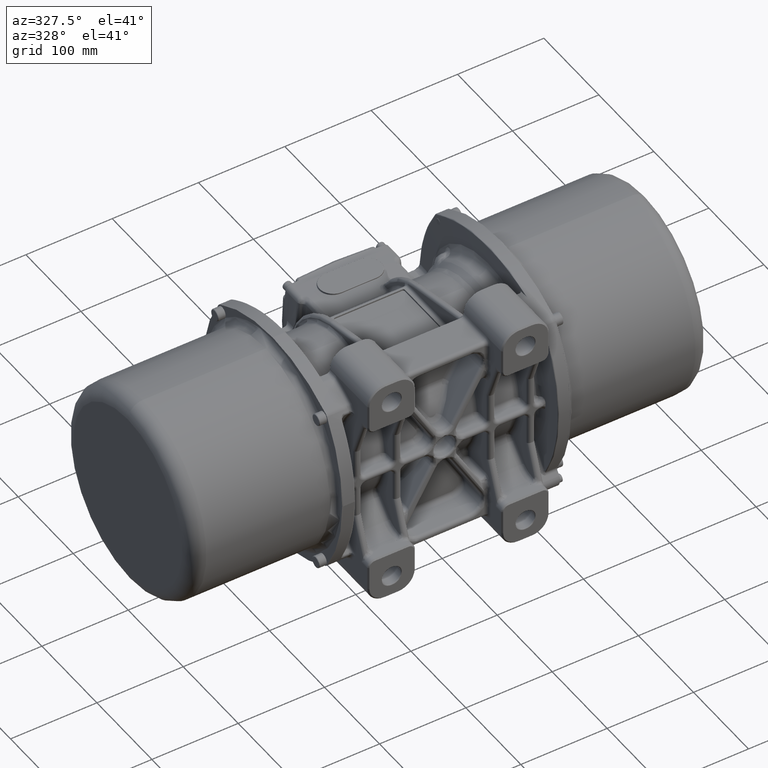
[diagram: clean part render]
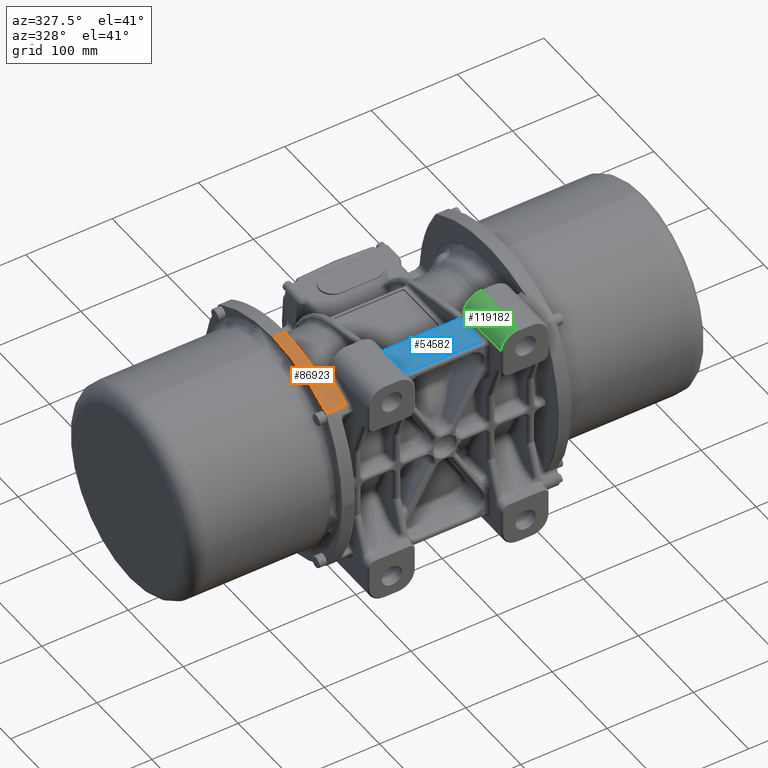
[diagram: same view with three faces highlighted in distinct colors, each labeled with its STEP entity id]
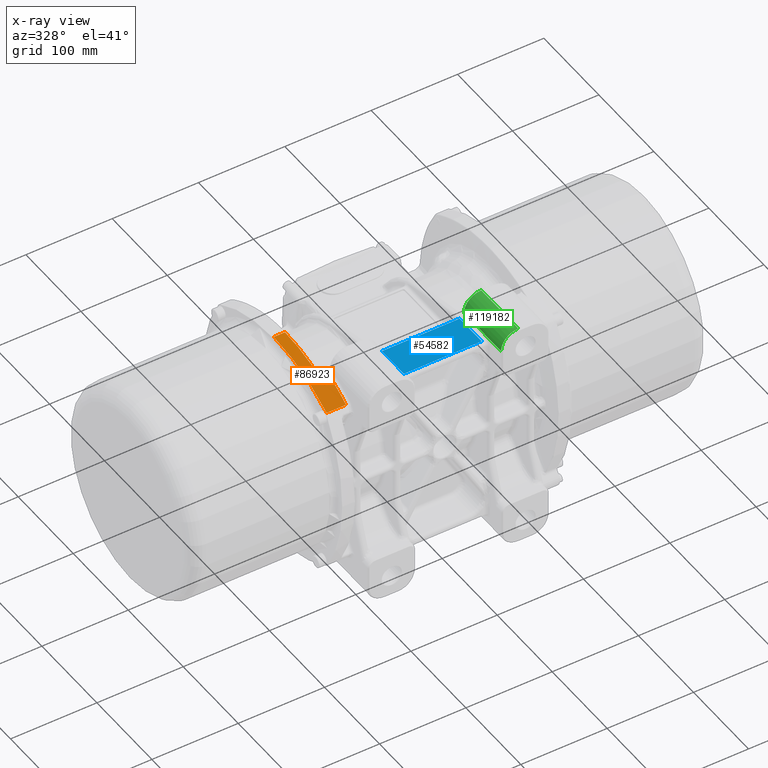
[diagram: x-ray of the same camera — body ghosted, the three highlighted faces saturated]
A machine part, auxiliary view with three faces highlighted in distinct colors.
The next image is the same camera in x-ray (body ghosted, the three faces saturated) — at least one of them is partly hidden behind the body in this view.
Their STEP definitions:

[orange] entity #86923 — the highlighted cylindrical surface (partial cylindrical patch) has radius 180.3 mm, axis along (-1, 0, 0).
#5776 = VERTEX_POINT ( 'NONE', #50323 ) ;
#6082 = CARTESIAN_POINT ( 'NONE',  ( -118.6816816531211200, -65.74333452991747600, 114.2074025944748600 ) ) ;
#7521 = CARTESIAN_POINT ( 'NONE',  ( -120.2500000000000000, -71.59013589302129800, 111.6779213150490100 ) ) ;
#14440 = LINE ( 'NONE', #7521, #17619 ) ;
#15464 = VECTOR ( 'NONE', #63552, 1000.000000000000000 ) ;
#17461 = CARTESIAN_POINT ( 'NONE',  ( -118.5021709262371100, -29.84946107399520100, 124.1177805386026900 ) ) ;
#17619 = VECTOR ( 'NONE', #67045, 1000.000000000000000 ) ;
#21217 = ORIENTED_EDGE ( 'NONE', *, *, #71637, .T. ) ;
#24781 = VERTEX_POINT ( 'NONE', #88666 ) ;
#26772 = ORIENTED_EDGE ( 'NONE', *, *, #83064, .T. ) ;
#27070 = CARTESIAN_POINT ( 'NONE',  ( -118.5750977379876900, -47.88210791217348800, 120.1381787410200800 ) ) ;
#29266 = DIRECTION ( 'NONE',  ( -1.000000000000000000, 0.0000000000000000000, 0.0000000000000000000 ) ) ;
#35801 = VECTOR ( 'NONE', #84630, 1000.000000000000000 ) ;
#36683 = CARTESIAN_POINT ( 'NONE',  ( -118.4853413452941900, -23.83284855131226700, 125.0191564698433500 ) ) ;
#37206 = CARTESIAN_POINT ( 'NONE',  ( -109.0000000000000000, -6.938893903907230000E-015, -53.79999999942380400 ) ) ;
#40728 = ORIENTED_EDGE ( 'NONE', *, *, #59203, .T. ) ;
#42042 = LINE ( 'NONE', #63121, #15464 ) ;
#42493 = ORIENTED_EDGE ( 'NONE', *, *, #56132, .F. ) ;
#43237 = B_SPLINE_CURVE_WITH_KNOTS ( 'NONE', 3,
 ( #86651, #6082, #87086, #27070, #97191, #17461, #36683, #56391, #66450, #67763 ),
 .UNSPECIFIED., .F., .F.,
 ( 4, 2, 2, 2, 4 ),
 ( 0.0000000000000000000, 0.1050940751175496200, 0.2101881502350992400, 0.3152822253526489400, 0.4203763004701986400 ),
 .UNSPECIFIED. ) ;
#48956 = CARTESIAN_POINT ( 'NONE',  ( -109.0000000000000000, -6.938893903907230000E-015, -53.79999999942380400 ) ) ;
#50323 = CARTESIAN_POINT ( 'NONE',  ( -109.0000000000000000, -96.19601830893420000, 98.69398696800111300 ) ) ;
#55218 = CARTESIAN_POINT ( 'NONE',  ( -120.2500000000000000, -96.19601830899999600, 98.69398696799999000 ) ) ;
#56132 = EDGE_CURVE ( 'NONE', #108036, #24781, #75802, .T. ) ;
#56391 = CARTESIAN_POINT ( 'NONE',  ( -118.4629012178692400, -11.85775497504376800, 126.2102470350209800 ) ) ;
#56426 = CARTESIAN_POINT ( 'NONE',  ( -109.0000000000000000, -71.59013589283769400, 111.6779213150916000 ) ) ;
#59203 = EDGE_CURVE ( 'NONE', #114771, #82876, #43237, .T. ) ;
#63121 = CARTESIAN_POINT ( 'NONE',  ( -109.0000000000000000, -6.938893903907230000E-015, 126.4999999998172100 ) ) ;
#63552 = DIRECTION ( 'NONE',  ( -1.000000000000000000, 0.0000000000000000000, 0.0000000000000000000 ) ) ;
#66450 = CARTESIAN_POINT ( 'NONE',  ( -118.4572906713872300, -5.899286397699881900, 126.4999999979351800 ) ) ;
#67045 = DIRECTION ( 'NONE',  ( -1.000000000000000000, 0.0000000000000000000, 0.0000000000000000000 ) ) ;
#67763 = CARTESIAN_POINT ( 'NONE',  ( -118.4572896421361500, -6.087628860209447900E-008, 126.5001420233804500 ) ) ;
#71637 = EDGE_CURVE ( 'NONE', #82876, #24781, #42042, .T. ) ;
#74075 = CARTESIAN_POINT ( 'NONE',  ( -131.5000000000000000, -96.19601830898140800, 98.69398696801170000 ) ) ;
#75802 = CIRCLE ( 'NONE', #110967, 180.2999999992410100 ) ;
#76041 = CYLINDRICAL_SURFACE ( 'NONE', #85851, 180.2999999992410100 ) ;
#76951 = CARTESIAN_POINT ( 'NONE',  ( -118.7265588731082000, -71.59013799792150200, 111.6779261792490000 ) ) ;
#77054 = DIRECTION ( 'NONE',  ( 0.0000000000000000000, 0.0000000000000000000, 1.000000000000000000 ) ) ;
#81845 = ORIENTED_EDGE ( 'NONE', *, *, #99945, .T. ) ;
#82876 = VERTEX_POINT ( 'NONE', #123230 ) ;
#83064 = EDGE_CURVE ( 'NONE', #108036, #5776, #84462, .T. ) ;
#84436 = AXIS2_PLACEMENT_3D ( 'NONE', #37206, #127065, #77054 ) ;
#84462 = LINE ( 'NONE', #55218, #35801 ) ;
#84630 = DIRECTION ( 'NONE',  ( 1.000000000000000000, 0.0000000000000000000, 0.0000000000000000000 ) ) ;
#85851 = AXIS2_PLACEMENT_3D ( 'NONE', #48956, #29266, #89300 ) ;
#86651 = CARTESIAN_POINT ( 'NONE',  ( -118.7265588731082000, -71.59013799792150200, 111.6779261792490000 ) ) ;
#86923 = ADVANCED_FACE ( 'NONE', ( #91625 ), #76041, .T. ) ;
#87086 = CARTESIAN_POINT ( 'NONE',  ( -118.6424140032564100, -59.81673769747066400, 116.4032437208050700 ) ) ;
#88666 = CARTESIAN_POINT ( 'NONE',  ( -131.5000000000000000, -6.938893903907230000E-015, 126.4999999998172100 ) ) ;
#89300 = DIRECTION ( 'NONE',  ( 0.0000000000000000000, 0.0000000000000000000, 1.000000000000000000 ) ) ;
#91625 = FACE_OUTER_BOUND ( 'NONE', #122106, .T. ) ;
#97191 = CARTESIAN_POINT ( 'NONE',  ( -118.5470491225838900, -41.87410002402230400, 121.6773110842701200 ) ) ;
#97833 = CARTESIAN_POINT ( 'NONE',  ( -131.5000000000000000, -6.938893903907230000E-015, -53.79999999942380400 ) ) ;
#98261 = DIRECTION ( 'NONE',  ( -1.000000000000000000, 0.0000000000000000000, 0.0000000000000000000 ) ) ;
#99945 = EDGE_CURVE ( 'NONE', #110694, #114771, #14440, .T. ) ;
#107086 = DIRECTION ( 'NONE',  ( 0.0000000000000000000, 0.0000000000000000000, 1.000000000000000000 ) ) ;
#108036 = VERTEX_POINT ( 'NONE', #74075 ) ;
#110561 = CIRCLE ( 'NONE', #84436, 180.2999999992410100 ) ;
#110694 = VERTEX_POINT ( 'NONE', #56426 ) ;
#110967 = AXIS2_PLACEMENT_3D ( 'NONE', #97833, #98261, #107086 ) ;
#114771 = VERTEX_POINT ( 'NONE', #76951 ) ;
#116486 = ORIENTED_EDGE ( 'NONE', *, *, #125109, .T. ) ;
#122106 = EDGE_LOOP ( 'NONE', ( #40728, #21217, #42493, #26772, #116486, #81845 ) ) ;
#123230 = CARTESIAN_POINT ( 'NONE',  ( -118.4572896421361500, -6.087628860209447900E-008, 126.5001420233804500 ) ) ;
#125109 = EDGE_CURVE ( 'NONE', #5776, #110694, #110561, .T. ) ;
#127065 = DIRECTION ( 'NONE',  ( -1.000000000000000000, 0.0000000000000000000, 0.0000000000000000000 ) ) ;

[blue] entity #54582 — the highlighted planar face has unit normal (0, 0, -1).
#2027 = ORIENTED_EDGE ( 'NONE', *, *, #2185, .T. ) ;
#2185 = EDGE_CURVE ( 'NONE', #16330, #89290, #114535, .T. ) ;
#4460 = LINE ( 'NONE', #103902, #108006 ) ;
#11973 = DIRECTION ( 'NONE',  ( -0.0000000000000000000, -1.000000000000000000, -0.0000000000000000000 ) ) ;
#16330 = VERTEX_POINT ( 'NONE', #40463 ) ;
#24287 = CARTESIAN_POINT ( 'NONE',  ( -45.00000000000000000, -81.00000000000000000, 112.5000000000000000 ) ) ;
#25156 = CARTESIAN_POINT ( 'NONE',  ( 45.00000000000000000, -81.00000000000000000, 112.5000000000000000 ) ) ;
#32599 = ORIENTED_EDGE ( 'NONE', *, *, #52925, .F. ) ;
#32871 = DIRECTION ( 'NONE',  ( -1.000000000000000000, -0.0000000000000000000, -0.0000000000000000000 ) ) ;
#36506 = PLANE ( 'NONE',  #49471 ) ;
#39681 = ORIENTED_EDGE ( 'NONE', *, *, #64848, .T. ) ;
#40395 = VERTEX_POINT ( 'NONE', #75682 ) ;
#40463 = CARTESIAN_POINT ( 'NONE',  ( -45.00000000000000000, -101.0000000000000000, 112.5000000000000000 ) ) ;
#44896 = LINE ( 'NONE', #25156, #126517 ) ;
#46600 = CARTESIAN_POINT ( 'NONE',  ( -45.00000000000000000, -101.0000000000000000, 112.5000000000000000 ) ) ;
#47302 = EDGE_CURVE ( 'NONE', #103382, #16330, #122833, .T. ) ;
#49471 = AXIS2_PLACEMENT_3D ( 'NONE', #46600, #57534, #57079 ) ;
#52925 = EDGE_CURVE ( 'NONE', #40395, #89290, #44896, .T. ) ;
#53105 = CARTESIAN_POINT ( 'NONE',  ( 45.00000000000000000, -101.0000000000000000, 112.5000000000000000 ) ) ;
#54582 = ADVANCED_FACE ( 'NONE', ( #115214 ), #36506, .F. ) ;
#57079 = DIRECTION ( 'NONE',  ( 0.0000000000000000000, 1.000000000000000000, 0.0000000000000000000 ) ) ;
#57534 = DIRECTION ( 'NONE',  ( 0.0000000000000000000, 0.0000000000000000000, -1.000000000000000000 ) ) ;
#64361 = EDGE_LOOP ( 'NONE', ( #73273, #2027, #32599, #39681 ) ) ;
#64848 = EDGE_CURVE ( 'NONE', #40395, #103382, #4460, .T. ) ;
#73273 = ORIENTED_EDGE ( 'NONE', *, *, #47302, .T. ) ;
#75682 = CARTESIAN_POINT ( 'NONE',  ( 45.00000000000000000, -61.00000000000000000, 112.5000000000000000 ) ) ;
#83685 = CARTESIAN_POINT ( 'NONE',  ( 0.0000000000000000000, -101.0000000000000000, 112.5000000000000000 ) ) ;
#89290 = VERTEX_POINT ( 'NONE', #53105 ) ;
#94375 = DIRECTION ( 'NONE',  ( -0.0000000000000000000, -1.000000000000000000, -0.0000000000000000000 ) ) ;
#103382 = VERTEX_POINT ( 'NONE', #112777 ) ;
#103902 = CARTESIAN_POINT ( 'NONE',  ( 0.0000000000000000000, -61.00000000000000000, 112.5000000000000000 ) ) ;
#108006 = VECTOR ( 'NONE', #32871, 1000.000000000000000 ) ;
#112777 = CARTESIAN_POINT ( 'NONE',  ( -45.00000000000000000, -61.00000000000000000, 112.5000000000000000 ) ) ;
#114535 = LINE ( 'NONE', #83685, #127088 ) ;
#115214 = FACE_OUTER_BOUND ( 'NONE', #64361, .T. ) ;
#122723 = DIRECTION ( 'NONE',  ( 1.000000000000000000, -0.0000000000000000000, -0.0000000000000000000 ) ) ;
#122833 = LINE ( 'NONE', #24287, #129160 ) ;
#126517 = VECTOR ( 'NONE', #11973, 1000.000000000000000 ) ;
#127088 = VECTOR ( 'NONE', #122723, 1000.000000000000000 ) ;
#129160 = VECTOR ( 'NONE', #94375, 1000.000000000000000 ) ;

[green] entity #119182 — the highlighted cylindrical surface (edge-blend (fillet) strip) has radius 20 mm, axis along (0, -1, 0).
#3825 = EDGE_CURVE ( 'NONE', #118021, #82277, #122004, .T. ) ;
#9703 = VECTOR ( 'NONE', #107729, 1000.000000000000000 ) ;
#12804 = CYLINDRICAL_SURFACE ( 'NONE', #96559, 20.00000000000000400 ) ;
#13323 = CIRCLE ( 'NONE', #127141, 20.00000000000000400 ) ;
#13420 = LINE ( 'NONE', #52376, #36921 ) ;
#16403 = CARTESIAN_POINT ( 'NONE',  ( 70.00000000000000000, -128.5000000000000000, 137.5000000000000000 ) ) ;
#21306 = ORIENTED_EDGE ( 'NONE', *, *, #49584, .T. ) ;
#23606 = CIRCLE ( 'NONE', #25548, 20.00000000000000400 ) ;
#25548 = AXIS2_PLACEMENT_3D ( 'NONE', #81728, #62030, #32243 ) ;
#26110 = CARTESIAN_POINT ( 'NONE',  ( 70.00000000000000000, -61.00000000000000000, 137.5000000000000000 ) ) ;
#28675 = ORIENTED_EDGE ( 'NONE', *, *, #77421, .F. ) ;
#31258 = CARTESIAN_POINT ( 'NONE',  ( 50.00000000000000000, -94.75000000000000000, 117.5000000000000000 ) ) ;
#32243 = DIRECTION ( 'NONE',  ( 0.0000000000000000000, 0.0000000000000000000, -1.000000000000000000 ) ) ;
#36921 = VECTOR ( 'NONE', #122540, 1000.000000000000000 ) ;
#37955 = FACE_OUTER_BOUND ( 'NONE', #109859, .T. ) ;
#40813 = CARTESIAN_POINT ( 'NONE',  ( 50.00000000000000000, -101.0000000000000000, 117.5000000000000000 ) ) ;
#44144 = DIRECTION ( 'NONE',  ( 0.0000000000000000000, 0.0000000000000000000, -1.000000000000000000 ) ) ;
#49584 = EDGE_CURVE ( 'NONE', #82277, #125354, #127276, .T. ) ;
#52376 = CARTESIAN_POINT ( 'NONE',  ( 70.00000000000000000, -94.75000000000000000, 137.5000000000000000 ) ) ;
#62030 = DIRECTION ( 'NONE',  ( 0.0000000000000000000, -1.000000000000000000, 0.0000000000000000000 ) ) ;
#62527 = CARTESIAN_POINT ( 'NONE',  ( 70.00000000000000000, -128.5000000000000000, 117.5000000000000000 ) ) ;
#67494 = ORIENTED_EDGE ( 'NONE', *, *, #69335, .T. ) ;
#67590 = ORIENTED_EDGE ( 'NONE', *, *, #95740, .F. ) ;
#69335 = EDGE_CURVE ( 'NONE', #101975, #118021, #23606, .T. ) ;
#70243 = DIRECTION ( 'NONE',  ( 0.0000000000000000000, -1.000000000000000000, 0.0000000000000000000 ) ) ;
#73455 = VECTOR ( 'NONE', #70243, 1000.000000000000000 ) ;
#77421 = EDGE_CURVE ( 'NONE', #94933, #125354, #13323, .T. ) ;
#81728 = CARTESIAN_POINT ( 'NONE',  ( 70.00000000000000000, -61.00000000000000000, 117.5000000000000000 ) ) ;
#82277 = VERTEX_POINT ( 'NONE', #40813 ) ;
#83983 = DIRECTION ( 'NONE',  ( 0.0000000000000000000, -1.000000000000000000, 0.0000000000000000000 ) ) ;
#87918 = CARTESIAN_POINT ( 'NONE',  ( 50.00000000000000000, -94.75000000000000000, 117.5000000000000000 ) ) ;
#94933 = VERTEX_POINT ( 'NONE', #16403 ) ;
#95740 = EDGE_CURVE ( 'NONE', #101975, #94933, #13420, .T. ) ;
#96559 = AXIS2_PLACEMENT_3D ( 'NONE', #99187, #110161, #108476 ) ;
#99187 = CARTESIAN_POINT ( 'NONE',  ( 70.00000000000000000, -61.00000000000000000, 117.5000000000000000 ) ) ;
#101975 = VERTEX_POINT ( 'NONE', #26110 ) ;
#107729 = DIRECTION ( 'NONE',  ( 0.0000000000000000000, -1.000000000000000000, 0.0000000000000000000 ) ) ;
#108476 = DIRECTION ( 'NONE',  ( 0.0000000000000000000, 0.0000000000000000000, -1.000000000000000000 ) ) ;
#109859 = EDGE_LOOP ( 'NONE', ( #21306, #28675, #67590, #67494, #126181 ) ) ;
#110161 = DIRECTION ( 'NONE',  ( 0.0000000000000000000, -1.000000000000000000, 0.0000000000000000000 ) ) ;
#118021 = VERTEX_POINT ( 'NONE', #128986 ) ;
#119182 = ADVANCED_FACE ( 'NONE', ( #37955 ), #12804, .T. ) ;
#122004 = LINE ( 'NONE', #31258, #73455 ) ;
#122540 = DIRECTION ( 'NONE',  ( 0.0000000000000000000, -1.000000000000000000, 0.0000000000000000000 ) ) ;
#125354 = VERTEX_POINT ( 'NONE', #129666 ) ;
#126181 = ORIENTED_EDGE ( 'NONE', *, *, #3825, .T. ) ;
#127141 = AXIS2_PLACEMENT_3D ( 'NONE', #62527, #83983, #44144 ) ;
#127276 = LINE ( 'NONE', #87918, #9703 ) ;
#128986 = CARTESIAN_POINT ( 'NONE',  ( 50.00000000000000000, -61.00000000000000000, 117.5000000000000000 ) ) ;
#129666 = CARTESIAN_POINT ( 'NONE',  ( 50.00000000000000000, -128.5000000000000000, 117.5000000000000000 ) ) ;